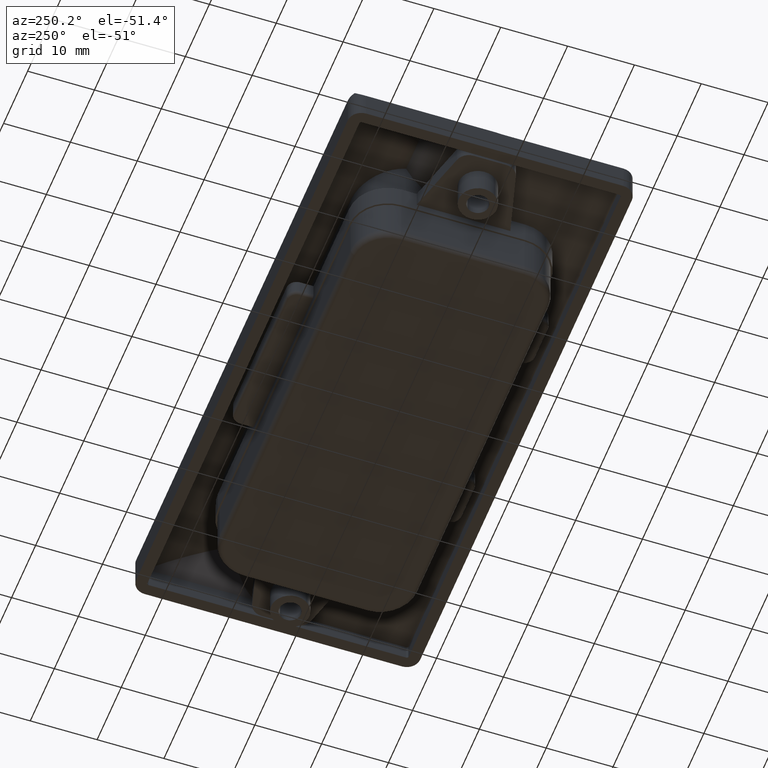
[diagram: clean part render]
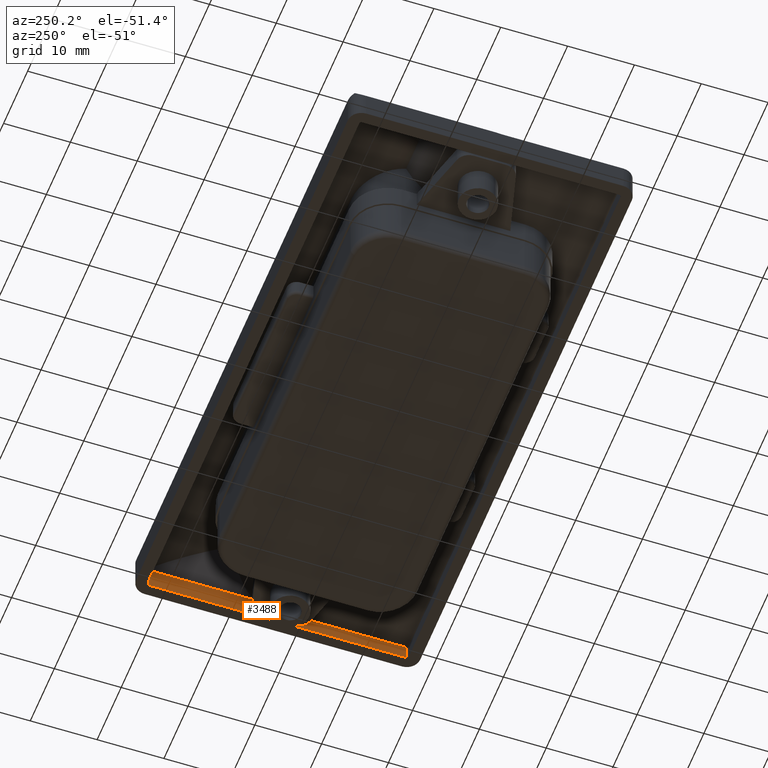
[diagram: same view with one face highlighted and labeled with its STEP entity id]
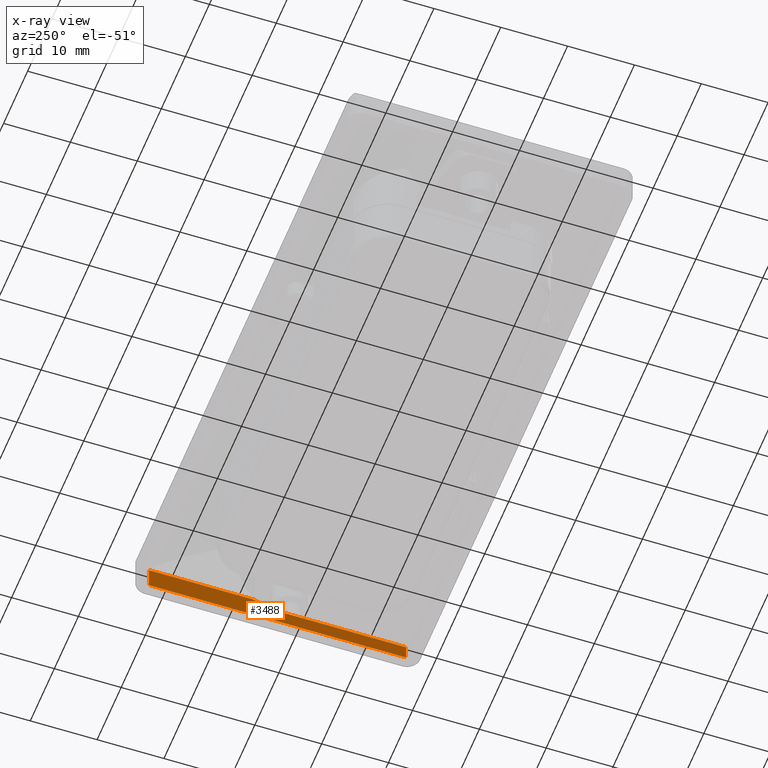
[diagram: x-ray of the same camera — body ghosted, the highlighted face saturated]
A machine part, auxiliary view. The second image highlights one B-rep face of the part: STEP entity #3488.
The next image is the same camera in x-ray: the body ghosted, the highlighted face saturated — about 0% of this face is hidden behind the body in this view.
In plain terms, the highlighted planar face has unit normal (1, 0, 0).
Its self-contained STEP definition (entity closure, byte-faithful):
#88=PLANE('',#3768);
#172=LINE('',#6203,#425);
#211=LINE('',#6430,#464);
#212=LINE('',#6432,#465);
#213=LINE('',#6434,#466);
#214=LINE('',#6435,#467);
#425=VECTOR('',#4224,18.);
#464=VECTOR('',#4387,15.7685173366839);
#465=VECTOR('',#4388,3.38125060174745);
#466=VECTOR('',#4389,38.5);
#467=VECTOR('',#4390,2.3);
#826=FACE_OUTER_BOUND('',#1044,.T.);
#1044=EDGE_LOOP('',(#2668,#2669,#2670,#2671,#2672,#2673,#2674));
#1247=CIRCLE('',#3710,10.95);
#1262=CIRCLE('',#3748,10.1805722108145);
#1540=VERTEX_POINT('',#6200);
#1541=VERTEX_POINT('',#6202);
#1545=VERTEX_POINT('',#6212);
#1580=VERTEX_POINT('',#6364);
#1591=VERTEX_POINT('',#6429);
#1592=VERTEX_POINT('',#6431);
#1593=VERTEX_POINT('',#6433);
#1909=EDGE_CURVE('',#1541,#1540,#172,.T.);
#1915=EDGE_CURVE('',#1540,#1545,#1247,.T.);
#1969=EDGE_CURVE('',#1545,#1580,#1262,.T.);
#1990=EDGE_CURVE('',#1580,#1591,#211,.F.);
#1991=EDGE_CURVE('',#1591,#1592,#212,.T.);
#1992=EDGE_CURVE('',#1593,#1592,#213,.T.);
#1993=EDGE_CURVE('',#1593,#1541,#214,.T.);
#2668=ORIENTED_EDGE('',*,*,#1915,.T.);
#2669=ORIENTED_EDGE('',*,*,#1969,.T.);
#2670=ORIENTED_EDGE('',*,*,#1990,.T.);
#2671=ORIENTED_EDGE('',*,*,#1991,.T.);
#2672=ORIENTED_EDGE('',*,*,#1992,.F.);
#2673=ORIENTED_EDGE('',*,*,#1993,.T.);
#2674=ORIENTED_EDGE('',*,*,#1909,.T.);
#3488=ADVANCED_FACE('',(#826),#88,.F.);
#3710=AXIS2_PLACEMENT_3D('',#6214,#4234,#4235);
#3748=AXIS2_PLACEMENT_3D('',#6366,#4337,#4338);
#3768=AXIS2_PLACEMENT_3D('',#6428,#4385,#4386);
#4224=DIRECTION('',(0.,1.,7.44308086801126E-34));
#4234=DIRECTION('center_axis',(1.,0.,0.));
#4235=DIRECTION('ref_axis',(0.,0.,1.));
#4337=DIRECTION('center_axis',(1.,0.,0.));
#4338=DIRECTION('ref_axis',(0.,-0.324324324324324,0.945945945945946));
#4385=DIRECTION('center_axis',(1.,0.,0.));
#4386=DIRECTION('ref_axis',(0.,0.,-1.));
#4387=DIRECTION('',(0.,-1.,0.));
#4388=DIRECTION('',(0.,0.,-1.));
#4389=DIRECTION('',(0.,1.,1.43675920833844E-16));
#4390=DIRECTION('',(0.,-1.83697019872103E-16,1.));
#6200=CARTESIAN_POINT('',(44.3,20.,-1.7));
#6202=CARTESIAN_POINT('',(44.3,2.,-1.7));
#6203=CARTESIAN_POINT('',(44.3,22.31747833793,-1.7));
#6212=CARTESIAN_POINT('',(44.3,23.5513513513514,-1.10810810810811));
#6214=CARTESIAN_POINT('Origin',(44.3,20.,9.25000000000001));
#6364=CARTESIAN_POINT('',(44.3,24.7314826633161,-0.618749398252549));
#6366=CARTESIAN_POINT('Origin',(44.3,20.249544147844,8.52216290212182));
#6428=CARTESIAN_POINT('Origin',(44.3,21.63495667586,0.087767535409958));
#6429=CARTESIAN_POINT('',(44.3,40.5,-0.618749398252547));
#6430=CARTESIAN_POINT('',(44.3,10.81747833793,-0.618749398252547));
#6431=CARTESIAN_POINT('',(44.3,40.5,-4.));
#6432=CARTESIAN_POINT('',(44.3,40.5,-1.95611623229502));
#6433=CARTESIAN_POINT('',(44.3,2.,-4.));
#6434=CARTESIAN_POINT('',(44.3,10.81747833793,-4.));
#6435=CARTESIAN_POINT('',(44.3,2.,0.0438837677049774));